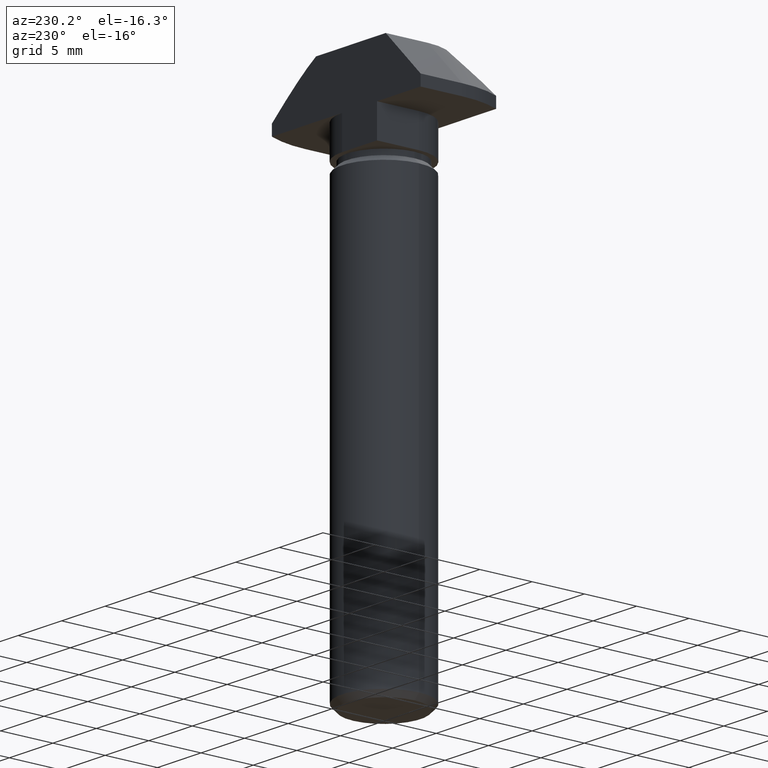
[diagram: clean part render]
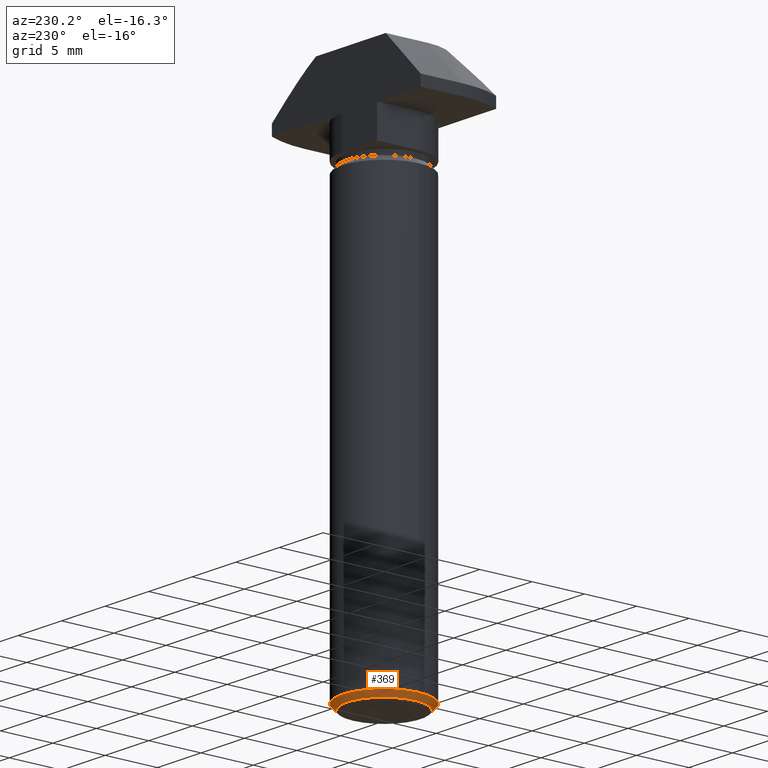
[diagram: same view with one face highlighted and labeled with its STEP entity id]
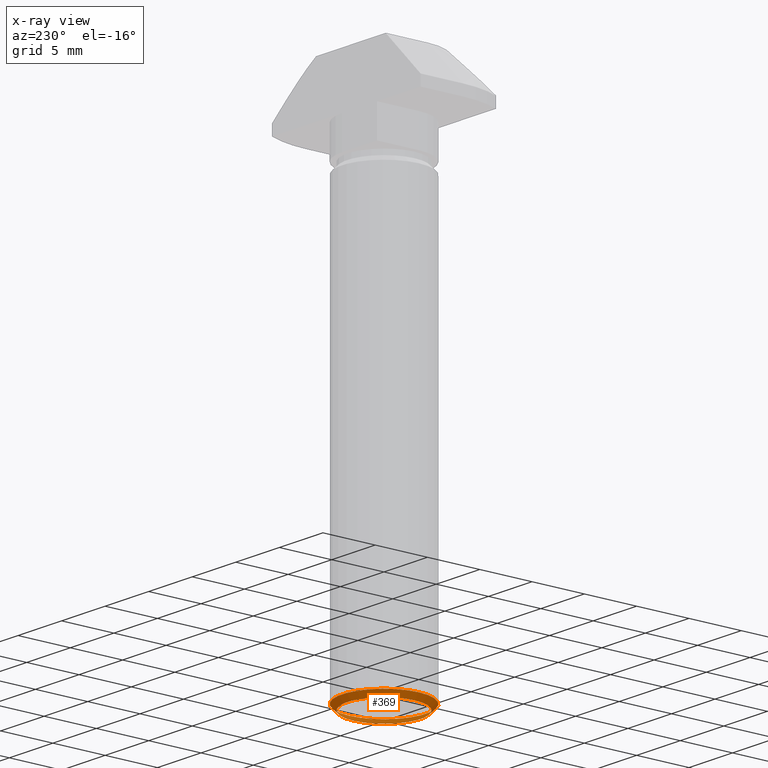
[diagram: x-ray of the same camera — body ghosted, the highlighted face saturated]
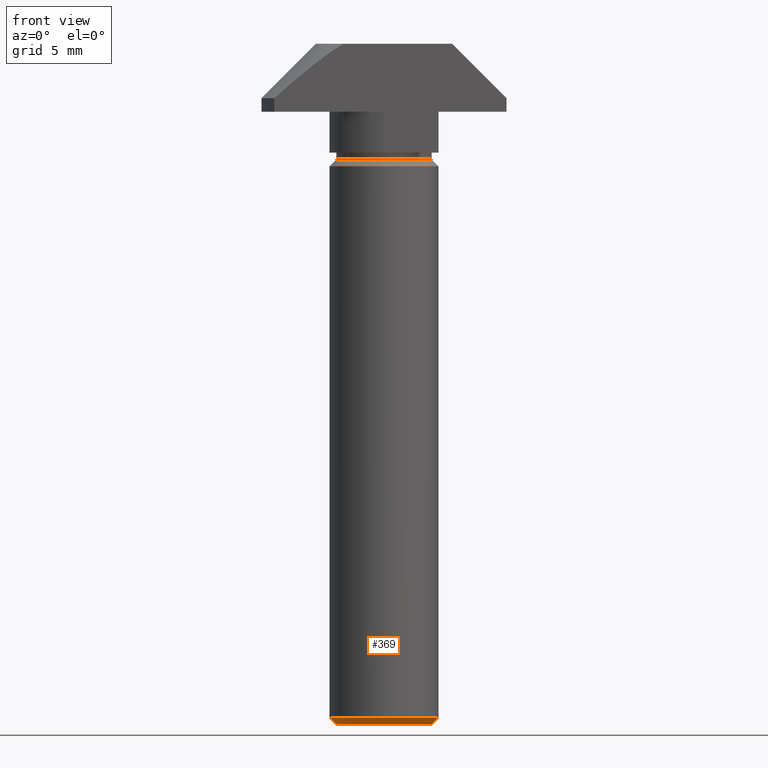
[diagram: same view with one face highlighted and labeled with its STEP entity id]
A machine part, auxiliary view. The second image highlights one B-rep face of the part: STEP entity #369.
The next image is the same camera in x-ray: the body ghosted, the highlighted face saturated — about 0% of this face is hidden behind the body in this view.
A second angle (front view) of the same face is appended — the face is thin or edge-on in the first view.
In plain terms, the highlighted conical surface has half-angle 45 deg.
Its self-contained STEP definition (entity closure, byte-faithful):
#106=FACE_BOUND('',#137,.T.);
#111=FACE_OUTER_BOUND('',#136,.T.);
#136=EDGE_LOOP('',(#265));
#137=EDGE_LOOP('',(#266));
#162=CIRCLE('',#396,4.);
#163=CIRCLE('',#398,3.5);
#177=VERTEX_POINT('',#549);
#178=VERTEX_POINT('',#552);
#212=EDGE_CURVE('',#177,#177,#162,.T.);
#213=EDGE_CURVE('',#178,#178,#163,.T.);
#265=ORIENTED_EDGE('',*,*,#212,.T.);
#266=ORIENTED_EDGE('',*,*,#213,.T.);
#364=CONICAL_SURFACE('',#397,3.75,44.9999999999996);
#369=ADVANCED_FACE('',(#111,#106),#364,.T.);
#396=AXIS2_PLACEMENT_3D('',#550,#440,#441);
#397=AXIS2_PLACEMENT_3D('',#551,#442,#443);
#398=AXIS2_PLACEMENT_3D('',#553,#444,#445);
#440=DIRECTION('center_axis',(0.,0.,-1.));
#441=DIRECTION('ref_axis',(1.,0.,0.));
#442=DIRECTION('center_axis',(0.,0.,1.));
#443=DIRECTION('ref_axis',(1.,0.,0.));
#444=DIRECTION('center_axis',(0.,0.,1.));
#445=DIRECTION('ref_axis',(1.,0.,0.));
#549=CARTESIAN_POINT('',(-4.,4.89858719658941E-16,-49.5));
#550=CARTESIAN_POINT('Origin',(0.,0.,-49.5));
#551=CARTESIAN_POINT('Origin',(0.,0.,-49.75));
#552=CARTESIAN_POINT('',(-3.5,-4.28626379701574E-16,-50.));
#553=CARTESIAN_POINT('Origin',(0.,0.,-50.));